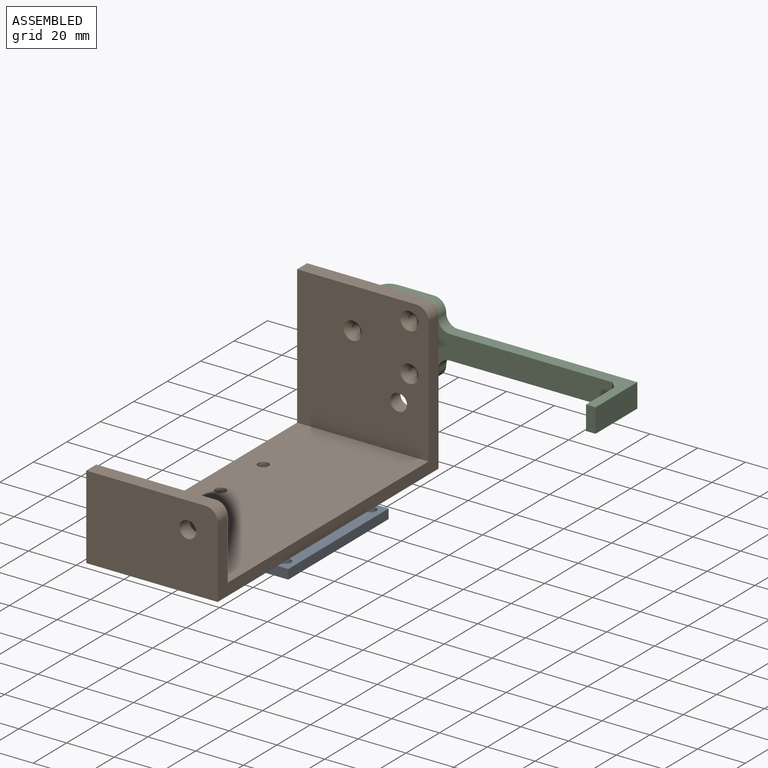
[diagram: assembled view]
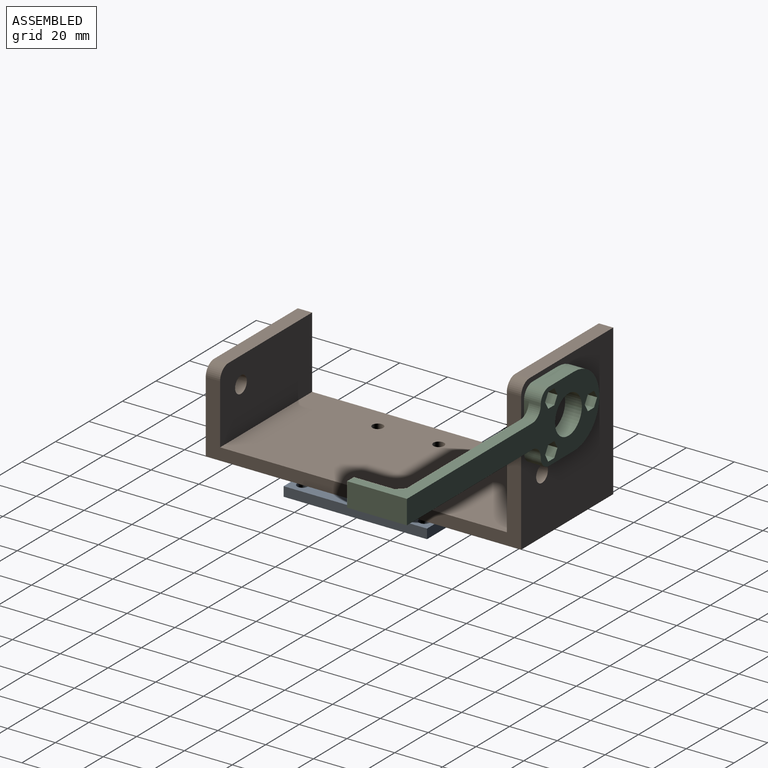
[diagram: assembled view, second angle]
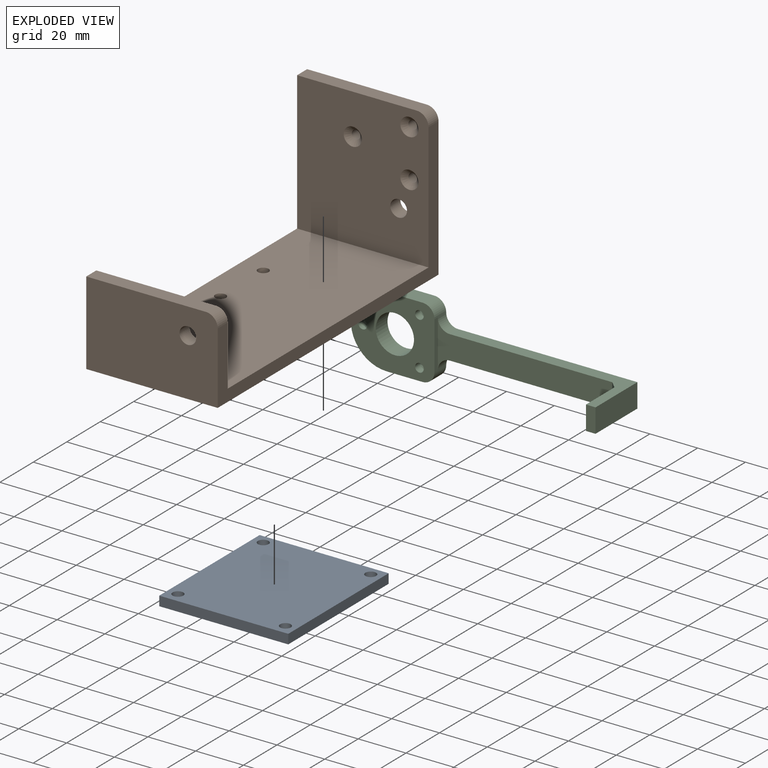
[diagram: exploded view]
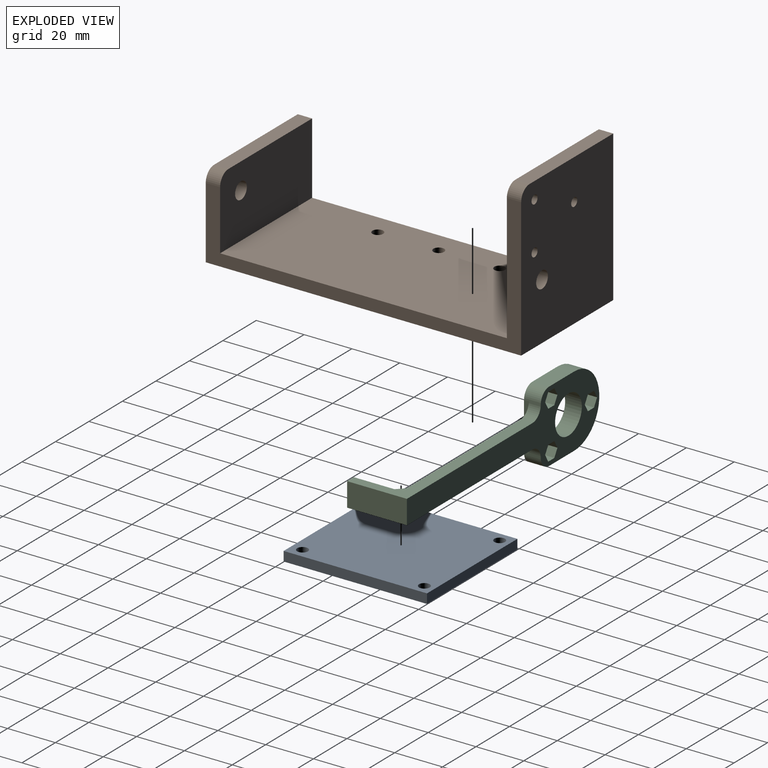
[diagram: exploded view, second angle]
ASSEMBLY  parts=3 mates=2
PART A: 10 faces, bbox 54x60x4 mm
  f0: plane 54x4mm, normal (0,1,0), area 216mm2, adj f1,f7,f8,f9
  f1: plane 60x4mm, normal (-1,0,0), area 240mm2, adj f0,f2,f8,f9
  f2: plane 54x4mm, normal (0,-1,0), area 216mm2, adj f1,f7,f8,f9
  f3: cylinder r=2.25mm len=4.5mm, axis (0,0,-1), area 56.5mm2, adj f8,f9
  f4: cylinder r=2.25mm len=4.5mm, axis (0,0,-1), area 56.5mm2, adj f8,f9
  f5: cylinder r=2.25mm len=4.5mm, axis (0,0,-1), area 56.5mm2, adj f8,f9
  f6: cylinder r=2.25mm len=4.5mm, axis (0,0,-1), area 56.5mm2, adj f8,f9
  f7: plane 60x4mm, normal (1,0,0), area 240mm2, adj f0,f2,f8,f9
  f8: plane 60x54mm, normal (0,0,1), area 3176.4mm2, adj f0,f1,f2,f3,f4,f5,f6,f7
  f9: plane 60x54mm, normal (0,0,-1), area 3176.4mm2, adj f0,f1,f2,f3,f4,f5,f6,f7
PART B: 23 faces, bbox 132x55x63 mm
  f0: plane 120x55mm, normal (0,0,1), area 6552.3mm2, adj f2,f4,f5,f6,f7,f9,f10
  f1: plane 63x55mm, normal (-1,0,0), area 3390.6mm2, adj f2,f6,f8,f13,f14,f15,f16,f17
  f2: plane 132x63mm, normal (0,-1,0), area 1188mm2, adj f0,f1,f3,f8,f9,f10,f11,f14
  f3: plane 55x35mm, normal (1,0,0), area 1881.2mm2, adj f2,f6,f8,f11,f12,f22
  f4: cylinder r=2.25mm len=5mm, axis (0,0,-1), area 70.7mm2, adj f0,f8
  f5: cylinder r=2.25mm len=5mm, axis (0,0,-1), area 70.7mm2, adj f0,f8
  f6: plane 132x58mm, normal (0,1,0), area 1128mm2, adj f0,f1,f3,f8,f9,f10,f21,f22
  f7: cylinder r=2.25mm len=5mm, axis (0,0,-1), area 70.7mm2, adj f0,f8
  f8: plane 132x55mm, normal (0,0,-1), area 7212.3mm2, adj f1,f2,f3,f4,f5,f6,f7
  f9: plane 58x55mm, normal (1,0,0), area 3010.1mm2, adj f0,f2,f6,f13,f14,f18,f19,f20
  f10: plane 55x30mm, normal (-1,0,0), area 1606.2mm2, adj f0,f2,f6,f11,f12,f22
  f11: plane 50x6mm, normal (0,0,1), area 300mm2, adj f2,f3,f10,f22
  f12: cylinder r=3.5mm len=7mm, axis (-1,0,0), area 131.9mm2, adj f3,f10
  f13: cylinder r=3.5mm len=7mm, axis (-1,0,0), area 131.9mm2, adj f1,f9
  f14: plane 50x6mm, normal (0,0,1), area 300mm2, adj f1,f2,f9,f21
  f15: cylinder r=1.8mm len=4mm, axis (-1,0,0), area 45.2mm2, adj f1,f18
  f16: cylinder r=1.8mm len=4mm, axis (-1,0,0), area 45.2mm2, adj f1,f20
  f17: cylinder r=1.8mm len=4mm, axis (-1,0,0), area 45.2mm2, adj f1,f19
  f18: cone r=3.8mm half-angle=45deg, axis (1,0,0), area 49.8mm2, adj f9,f15
  f19: cone r=3.8mm half-angle=45deg, axis (1,0,0), area 49.8mm2, adj f9,f17
  f20: cone r=3.8mm half-angle=45deg, axis (1,0,0), area 49.8mm2, adj f9,f16
  f21: cylinder r=5mm len=6mm, axis (1,0,0), area 47.1mm2, adj f1,f6,f9,f14
  f22: cylinder r=5mm len=6mm, axis (1,0,0), area 47.1mm2, adj f3,f6,f10,f11
PART C: 42 faces, bbox 25x115x30 mm
  f0: plane 20x2mm, normal (0,1,0), area 40mm2, adj f5,f35,f37,f39
  f1: plane 115x30mm, normal (-1,0,0), area 1447.1mm2, adj f2,f3,f4,f7,f8,f9,f10,f11
  f2: plane 15x7mm, normal (0,0,1), area 105mm2, adj f1,f5,f36,f39
  f3: cylinder r=8mm len=16mm, axis (-1,0,0), area 351.9mm2, adj f1,f5
  f4: plane 15x7mm, normal (0,0,-1), area 105mm2, adj f1,f5,f36,f37
  f5: plane 35x30mm, normal (1,0,0), area 711.1mm2, adj f0,f2,f3,f4,f6,f14,f22,f36
  f6: cylinder r=1.8mm len=3.6mm, axis (-1,0,0), area 35.1mm2, adj f5,f13
  f7: plane 3.9x3.18mm, normal (0,-0.87,0.5), area 14.3mm2, adj f1,f8,f12,f13
  f8: plane 3.9x3.18mm, normal (0,-0.87,-0.5), area 14.3mm2, adj f1,f7,f9,f13
  f9: plane 3.9x3.68mm, normal (0,0,-1), area 14.3mm2, adj f1,f8,f10,f13
  f10: plane 3.9x3.18mm, normal (0,0.87,-0.5), area 14.3mm2, adj f1,f9,f11,f13
  f11: plane 3.9x3.18mm, normal (0,0.87,0.5), area 14.3mm2, adj f1,f10,f12,f13
  f12: plane 3.9x3.68mm, normal (0,0,1), area 14.3mm2, adj f1,f7,f11,f13
  f13: plane 7.35x6.37mm, normal (-1,0,0), area 24.9mm2, adj f6,f7,f8,f9,f10,f11,f12
  f14: cylinder r=1.8mm len=3.6mm, axis (-1,0,0), area 35.1mm2, adj f5,f21
  f15: plane 3.9x3.18mm, normal (0,-0.87,0.5), area 14.3mm2, adj f1,f16,f20,f21
  f16: plane 3.9x3.18mm, normal (0,-0.87,-0.5), area 14.3mm2, adj f1,f15,f17,f21
  f17: plane 3.9x3.68mm, normal (0,0,-1), area 14.3mm2, adj f1,f16,f18,f21
  f18: plane 3.9x3.18mm, normal (0,0.87,-0.5), area 14.3mm2, adj f1,f17,f19,f21
  f19: plane 3.9x3.18mm, normal (0,0.87,0.5), area 14.3mm2, adj f1,f18,f20,f21
  f20: plane 3.9x3.68mm, normal (0,0,1), area 14.3mm2, adj f1,f15,f19,f21
  f21: plane 7.35x6.37mm, normal (-1,0,0), area 24.9mm2, adj f14,f15,f16,f17,f18,f19,f20
  f22: cylinder r=1.8mm len=3.6mm, axis (-1,0,0), area 35.1mm2, adj f5,f29
  f23: plane 3.9x3.18mm, normal (0,-0.87,0.5), area 14.3mm2, adj f1,f24,f28,f29
  f24: plane 3.9x3.18mm, normal (0,-0.87,-0.5), area 14.3mm2, adj f1,f23,f25,f29
  f25: plane 3.9x3.68mm, normal (0,0,-1), area 14.3mm2, adj f1,f24,f26,f29
  f26: plane 3.9x3.18mm, normal (0,0.87,-0.5), area 14.3mm2, adj f1,f25,f27,f29
  f27: plane 3.9x3.18mm, normal (0,0.87,0.5), area 14.3mm2, adj f1,f26,f28,f29
  f28: plane 3.9x3.68mm, normal (0,0,1), area 14.3mm2, adj f1,f23,f27,f29
  f29: plane 7.35x6.37mm, normal (-1,0,0), area 24.9mm2, adj f22,f23,f24,f25,f26,f27,f28
  f30: plane 75x25mm, normal (0,0,1), area 459.5mm2, adj f1,f31,f33,f34,f35,f40,f41
  f31: plane 17x10mm, normal (0,-1,0), area 170mm2, adj f30,f32,f34,f41
  f32: plane 75x25mm, normal (0,0,-1), area 459.5mm2, adj f1,f31,f33,f34,f35,f38,f41
  f33: plane 25x10mm, normal (0,1,0), area 250mm2, adj f1,f30,f32,f34
  f34: plane 10x4mm, normal (1,0,0), area 40mm2, adj f30,f31,f32,f33
  f35: plane 73x20mm, normal (1,0,0), area 740.7mm2, adj f0,f30,f32,f38,f40,f41
  f36: cylinder r=15mm len=30mm, axis (-1,0,0), area 329.9mm2, adj f1,f2,f4,f5
  f37: cylinder r=5mm len=7mm, axis (1,0,0), area 55mm2, adj f0,f1,f4,f5,f38
  f38: cylinder r=5mm len=5mm, axis (1,0,0), area 39.3mm2, adj f1,f32,f35,f37
  f39: cylinder r=5mm len=7mm, axis (-1,0,0), area 55mm2, adj f0,f1,f2,f5,f40
  f40: cylinder r=5mm len=5mm, axis (-1,0,0), area 39.3mm2, adj f1,f30,f35,f39
  f41: plane 10x3mm, normal (0.71,-0.71,0), area 42.4mm2, adj f30,f31,f32,f35
PLACE A t=(-26.81,-6.36,11.68)mm
PLACE B rot(axis=(0,0,-1),90deg) t=(-31.81,-6.11,15.68)mm
PLACE C rot(axis=(0,0,-1),90deg) t=(-6.01,66.89,46.68)mm
MATE revolute C.f14 <-> B.f16  axis (0,-1,0) through (-12.31,59.89,71.68)mm
MATE revolute B.f4 <-> A.f5  axis (0,0,-1) through (-49.31,-31.61,15.68)mm
